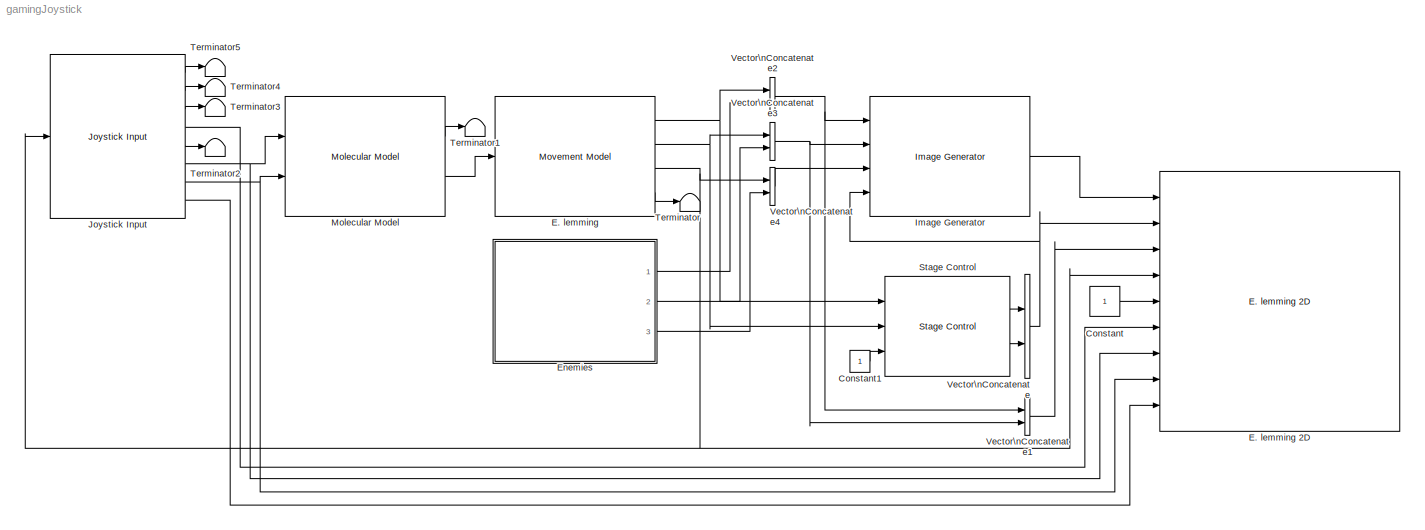
MODEL gamingJoystick
KIND model
BLOCK [Constant] Constant
  OutDataTypeStr = uint32
  SID = 1
BLOCK [Constant] Constant1
  SID = 2
BLOCK [Reference] E. lemming  REF=LemmingToolbox/Movement Model
  Ports = [1, 4]
  SID = 3
  SourceBlock = LemmingToolbox/Movement Model
  binning = 2
  imageDim = [1344,1024]
  initialCondition = [0.5, 0.5, 0]
  pixelSize = 6.45 / 40
  sampleTimes = [0.03, 0]
BLOCK [Reference] E. lemming 2D  REF=LemmingToolbox/E. lemming 2D
  FunctionWithSeparateData = off
  Ports = [9]
  RTWMemSecDataConstants = Inherit from model
  RTWMemSecDataInternal = Inherit from model
  RTWMemSecDataParameters = Inherit from model
  RTWMemSecFuncExecute = Inherit from model
  RTWMemSecFuncInitTerm = Inherit from model
  SID = 4
  ShowPortLabels = FromPortIcon
  SourceBlock = LemmingToolbox/E. lemming 2D
  SourceType = Lemming Path Plotter
  SystemSampleTime = -1
  binning = 2
  coneAngle = pi/4
  coneWidth = 150
  imageDim = [1344,1024]
  maxNumCells = 6
  outputFilename = game.avi
  pathLength = 30
  sampleTimes = [0.3, 0.1]
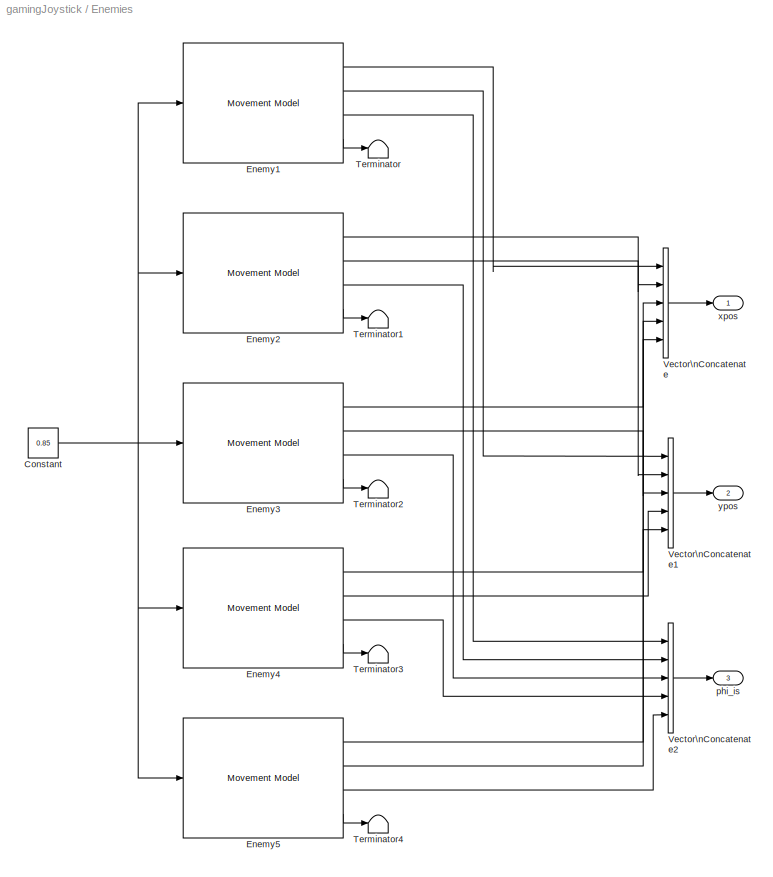
BLOCK [SubSystem] Enemies
  Ports = [0, 3]
  RequestExecContextInheritance = off
  SID = 5
BLOCK [Constant] Enemies/Constant
  SID = 6
  Value = 0.85
BLOCK [Reference] Enemies/Enemy1  REF=LemmingToolbox/Movement Model
  Ports = [1, 4]
  SID = 7
  SourceBlock = LemmingToolbox/Movement Model
  binning = 2
  imageDim = [1344,1024]
  initialCondition = [0.1, 0.2, 0]
  pixelSize = 6.45 / 40
  sampleTimes = [0.03, 0]
BLOCK [Reference] Enemies/Enemy2  REF=LemmingToolbox/Movement Model
  Ports = [1, 4]
  SID = 8
  SourceBlock = LemmingToolbox/Movement Model
  binning = 2
  imageDim = [1344,1024]
  initialCondition = [0.8, 0.1, 0]
  pixelSize = 6.45 / 40
  sampleTimes = [0.03, 0]
BLOCK [Reference] Enemies/Enemy3  REF=LemmingToolbox/Movement Model
  Ports = [1, 4]
  SID = 9
  SourceBlock = LemmingToolbox/Movement Model
  binning = 2
  imageDim = [1344,1024]
  initialCondition = [0.5, 0.9, 0]
  pixelSize = 6.45 / 40
  sampleTimes = [0.03, 0]
BLOCK [Reference] Enemies/Enemy4  REF=LemmingToolbox/Movement Model
  Ports = [1, 4]
  SID = 10
  SourceBlock = LemmingToolbox/Movement Model
  binning = 2
  imageDim = [1344,1024]
  initialCondition = [0.7, 0.3, 0]
  pixelSize = 6.45 / 40
  sampleTimes = [0.03, 0]
BLOCK [Reference] Enemies/Enemy5  REF=LemmingToolbox/Movement Model
  Ports = [1, 4]
  SID = 11
  SourceBlock = LemmingToolbox/Movement Model
  binning = 2
  imageDim = [1344,1024]
  initialCondition = [0.3, 0.6, 0]
  pixelSize = 6.45 / 40
  sampleTimes = [0.03, 0]
BLOCK [Terminator] Enemies/Terminator
  SID = 12
BLOCK [Terminator] Enemies/Terminator1
  SID = 13
BLOCK [Terminator] Enemies/Terminator2
  SID = 14
BLOCK [Terminator] Enemies/Terminator3
  SID = 15
BLOCK [Terminator] Enemies/Terminator4
  SID = 16
BLOCK [Concatenate] Enemies/Vector\nConcatenate
  NumInputs = 5
  Ports = [5, 1]
  SID = 17
BLOCK [Concatenate] Enemies/Vector\nConcatenate1
  NumInputs = 5
  Ports = [5, 1]
  SID = 18
BLOCK [Concatenate] Enemies/Vector\nConcatenate2
  NumInputs = 5
  Ports = [5, 1]
  SID = 19
BLOCK [Outport] Enemies/phi_is
  IconDisplay = Port number
  Port = 3
  SID = 22
BLOCK [Outport] Enemies/xpos
  IconDisplay = Port number
  SID = 20
BLOCK [Outport] Enemies/ypos
  IconDisplay = Port number
  Port = 2
  SID = 21
BLOCK [Reference] Image Generator  REF=LemmingToolbox/Image Generator
  Ports = [4, 1]
  SID = 23
  SourceBlock = LemmingToolbox/Image Generator
  binning = 2
  numCells = 6
  sampleTime = [0.3, 0.1]
BLOCK [Reference] Joystick Input  REF=LemmingToolbox/Joystick Input
  FunctionWithSeparateData = off
  Ports = [1, 8]
  RTWMemSecDataConstants = Inherit from model
  RTWMemSecDataInternal = Inherit from model
  RTWMemSecDataParameters = Inherit from model
  RTWMemSecFuncExecute = Inherit from model
  RTWMemSecFuncInitTerm = Inherit from model
  SID = 24
  ShowPortLabels = FromPortIcon
  SourceBlock = LemmingToolbox/Joystick Input
  SystemSampleTime = 1
  minMaxThresh = [0.05, 0.2]
  sampleTimes = [0.1, 0]
BLOCK [Reference] Molecular Model  REF=LemmingToolbox/Molecular Model
  Anker = 80
  AnkerProt = 60
  CheX = 40
  Ports = [2, 2]
  SID = 25
  SourceBlock = LemmingToolbox/Molecular Model
  asp = 1e-3
  cheSpeciesAttachedTo = CheX-PhyB & PIF3-Anker
  controlledCheSpecies = CheY
  molecModel = Spiro
  useOrgParameters = off
BLOCK [Reference] Stage Control  REF=LemmingToolbox/Stage Control
  FunctionWithSeparateData = off
  Ports = [3, 2]
  RTWMemSecDataConstants = Inherit from model
  RTWMemSecDataInternal = Inherit from model
  RTWMemSecDataParameters = Inherit from model
  RTWMemSecFuncExecute = Inherit from model
  RTWMemSecFuncInitTerm = Inherit from model
  SID = 26
  ShowPortLabels = FromPortIcon
  SourceBlock = LemmingToolbox/Stage Control
  SystemSampleTime = -1
  activate = on
  border = 0.25
  controlMicroscope = off
  cooldown = 0
  initialCondition = [0, 0]
  sampleTimes = [0.3, 0.1]
BLOCK [Terminator] Terminator
  SID = 27
BLOCK [Terminator] Terminator1
  SID = 28
BLOCK [Terminator] Terminator2
  SID = 29
BLOCK [Terminator] Terminator3
  SID = 30
BLOCK [Terminator] Terminator4
  SID = 31
BLOCK [Terminator] Terminator5
  SID = 32
BLOCK [Concatenate] Vector\nConcatenate
  ConcatenateDimension = 2
  Ports = [2, 1]
  SID = 33
BLOCK [Concatenate] Vector\nConcatenate1
  ConcatenateDimension = 2
  Mode = Multidimensional array
  Ports = [2, 1]
  SID = 34
BLOCK [Concatenate] Vector\nConcatenate2
  Ports = [2, 1]
  SID = 35
BLOCK [Concatenate] Vector\nConcatenate3
  Ports = [2, 1]
  SID = 36
BLOCK [Concatenate] Vector\nConcatenate4
  Ports = [2, 1]
  SID = 37
LINE Constant1:1 -> Stage Control:3
LINE Constant:1 -> E. lemming 2D:5
NET E. lemming:1 -> Stage Control:1, Vector\nConcatenate2:1
NET E. lemming:2 -> Stage Control:2, Vector\nConcatenate3:1
NET E. lemming:3 -> E. lemming 2D:4, Joystick Input:1, Vector\nConcatenate4:1
LINE E. lemming:4 -> Terminator:1
NET Enemies/Constant:1 -> Enemies/Enemy1:1, Enemies/Enemy2:1, Enemies/Enemy3:1, Enemies/Enemy4:1, Enemies/Enemy5:1
LINE Enemies/Enemy1:1 -> Enemies/Vector\nConcatenate:1
LINE Enemies/Enemy1:2 -> Enemies/Vector\nConcatenate1:1
LINE Enemies/Enemy1:3 -> Enemies/Vector\nConcatenate2:1
LINE Enemies/Enemy1:4 -> Enemies/Terminator:1
LINE Enemies/Enemy2:1 -> Enemies/Vector\nConcatenate:2
LINE Enemies/Enemy2:2 -> Enemies/Vector\nConcatenate1:2
LINE Enemies/Enemy2:3 -> Enemies/Vector\nConcatenate2:2
LINE Enemies/Enemy2:4 -> Enemies/Terminator1:1
LINE Enemies/Enemy3:1 -> Enemies/Vector\nConcatenate:3
LINE Enemies/Enemy3:2 -> Enemies/Vector\nConcatenate1:3
LINE Enemies/Enemy3:3 -> Enemies/Vector\nConcatenate2:3
LINE Enemies/Enemy3:4 -> Enemies/Terminator2:1
LINE Enemies/Enemy4:1 -> Enemies/Vector\nConcatenate:4
LINE Enemies/Enemy4:2 -> Enemies/Vector\nConcatenate1:4
LINE Enemies/Enemy4:3 -> Enemies/Vector\nConcatenate2:4
LINE Enemies/Enemy4:4 -> Enemies/Terminator3:1
LINE Enemies/Enemy5:1 -> Enemies/Vector\nConcatenate:5
LINE Enemies/Enemy5:2 -> Enemies/Vector\nConcatenate1:5
LINE Enemies/Enemy5:3 -> Enemies/Vector\nConcatenate2:5
LINE Enemies/Enemy5:4 -> Enemies/Terminator4:1
LINE Enemies/Vector\nConcatenate1:1 -> Enemies/ypos:1
LINE Enemies/Vector\nConcatenate2:1 -> Enemies/phi_is:1
LINE Enemies/Vector\nConcatenate:1 -> Enemies/xpos:1
LINE Enemies:1 -> Vector\nConcatenate2:2
LINE Enemies:2 -> Vector\nConcatenate3:2
LINE Enemies:3 -> Vector\nConcatenate4:2
LINE Image Generator:1 -> E. lemming 2D:1
LINE Joystick Input:1 -> Terminator5:1
LINE Joystick Input:2 -> Terminator4:1
LINE Joystick Input:3 -> Terminator3:1
LINE Joystick Input:4 -> E. lemming 2D:6
LINE Joystick Input:5 -> Terminator2:1
NET Joystick Input:6 -> E. lemming 2D:7, Molecular Model:1
NET Joystick Input:7 -> E. lemming 2D:8, Molecular Model:2
LINE Joystick Input:8 -> E. lemming 2D:9
LINE Molecular Model:1 -> Terminator1:1
LINE Molecular Model:2 -> E. lemming:1
LINE Stage Control:1 -> Vector\nConcatenate:1
LINE Stage Control:2 -> Vector\nConcatenate:2
LINE Vector\nConcatenate1:1 -> E. lemming 2D:3
NET Vector\nConcatenate2:1 -> Image Generator:1, Vector\nConcatenate1:1
NET Vector\nConcatenate3:1 -> Image Generator:2, Vector\nConcatenate1:2
LINE Vector\nConcatenate4:1 -> Image Generator:3
NET Vector\nConcatenate:1 -> E. lemming 2D:2, Image Generator:4
note: NET lines group one-source signal fan-out (src -> all destinations, sorted); 1:1 wires keep LINE
